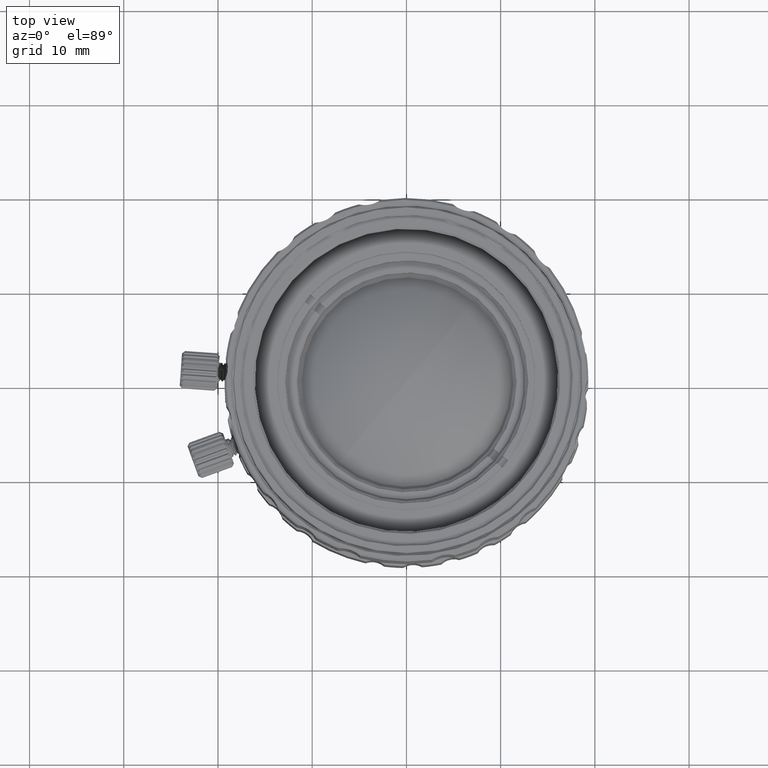
[diagram: clean part render]
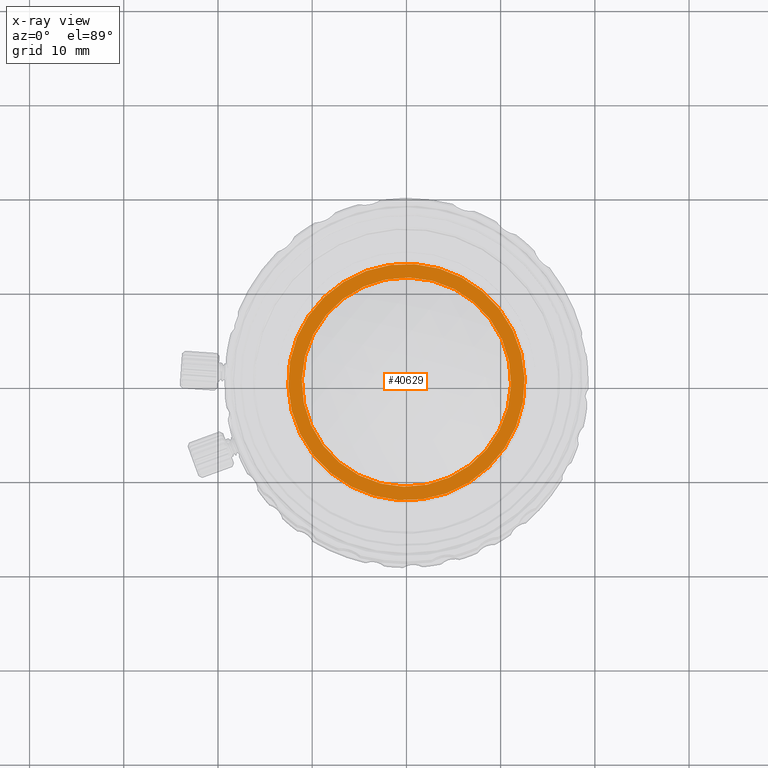
[diagram: x-ray — body ghosted, one internal face saturated and labeled with its STEP entity id]
A machine part, top view, then the same camera in x-ray: the body is ghosted and one INTERNAL B-rep face — a face not visible from any outside direction — is saturated and labeled: STEP entity #40629.
In plain terms, the highlighted planar face has unit normal (0, 0, -1).
Its self-contained STEP definition (entity closure, byte-faithful):
#1437 = VERTEX_POINT ( 'NONE', #47930 ) ;
#1989 = CARTESIAN_POINT ( 'NONE',  ( 7.139441980788022057, 8.508455629722799785, 27.52599999999999980 ) ) ;
#2292 = DIRECTION ( 'NONE',  ( 0.000000000000000000, 0.000000000000000000, -1.000000000000000000 ) ) ;
#4578 = AXIS2_PLACEMENT_3D ( 'NONE', #26975, #15800, #39155 ) ;
#5172 = DIRECTION ( 'NONE',  ( 0.000000000000000000, 0.000000000000000000, 1.000000000000000000 ) ) ;
#5848 = ORIENTED_EDGE ( 'NONE', *, *, #36197, .T. ) ;
#7103 = ORIENTED_EDGE ( 'NONE', *, *, #14534, .F. ) ;
#7549 = DIRECTION ( 'NONE',  ( 0.6427876096865059452, 0.7660444431190059911, 0.000000000000000000 ) ) ;
#7610 = ORIENTED_EDGE ( 'NONE', *, *, #18499, .F. ) ;
#7895 = CIRCLE ( 'NONE', #34618, 11.10699999999999932 ) ;
#8859 = AXIS2_PLACEMENT_3D ( 'NONE', #42296, #49638, #7549 ) ;
#9231 = AXIS2_PLACEMENT_3D ( 'NONE', #37531, #2292, #29681 ) ;
#9834 = VERTEX_POINT ( 'NONE', #34986 ) ;
#13765 = EDGE_LOOP ( 'NONE', ( #5848, #49674 ) ) ;
#14534 = EDGE_CURVE ( 'NONE', #16439, #9834, #30745, .T. ) ;
#15800 = DIRECTION ( 'NONE',  ( 0.000000000000000000, 0.000000000000000000, 1.000000000000000000 ) ) ;
#16366 = CARTESIAN_POINT ( 'NONE',  ( 0.000000000000000000, 0.000000000000000000, 27.52599999999999980 ) ) ;
#16439 = VERTEX_POINT ( 'NONE', #26735 ) ;
#17690 = EDGE_LOOP ( 'NONE', ( #7103, #7610 ) ) ;
#18499 = EDGE_CURVE ( 'NONE', #9834, #16439, #28880, .T. ) ;
#22065 = FACE_BOUND ( 'NONE', #13765, .T. ) ;
#25623 = PLANE ( 'NONE',  #9231 ) ;
#26089 = VERTEX_POINT ( 'NONE', #1989 ) ;
#26735 = CARTESIAN_POINT ( 'NONE',  ( 8.066984501683208464, 9.613857761283624015, 27.52599999999999980 ) ) ;
#26975 = CARTESIAN_POINT ( 'NONE',  ( 0.000000000000000000, 0.000000000000000000, 27.52599999999999980 ) ) ;
#27293 = DIRECTION ( 'NONE',  ( 0.000000000000000000, 0.000000000000000000, 1.000000000000000000 ) ) ;
#28880 = CIRCLE ( 'NONE', #4578, 12.54999999999999893 ) ;
#29681 = DIRECTION ( 'NONE',  ( 0.000000000000000000, -1.000000000000000000, 0.000000000000000000 ) ) ;
#30745 = CIRCLE ( 'NONE', #8859, 12.54999999999999893 ) ;
#31096 = CARTESIAN_POINT ( 'NONE',  ( 0.000000000000000000, 0.000000000000000000, 27.52599999999999980 ) ) ;
#34618 = AXIS2_PLACEMENT_3D ( 'NONE', #16366, #5172, #46537 ) ;
#34986 = CARTESIAN_POINT ( 'NONE',  ( -8.066984501683208464, -9.613857761283622239, 27.52599999999999980 ) ) ;
#36197 = EDGE_CURVE ( 'NONE', #26089, #1437, #41296, .T. ) ;
#37531 = CARTESIAN_POINT ( 'NONE',  ( 0.000000000000000000, 0.000000000000000000, 27.52599999999999980 ) ) ;
#39155 = DIRECTION ( 'NONE',  ( 0.6427876096865059452, 0.7660444431190059911, 0.000000000000000000 ) ) ;
#40629 = ADVANCED_FACE ( 'NONE', ( #22065, #44869 ), #25623, .T. ) ;
#41296 = CIRCLE ( 'NONE', #47766, 11.10699999999999932 ) ;
#42296 = CARTESIAN_POINT ( 'NONE',  ( 0.000000000000000000, 0.000000000000000000, 27.52599999999999980 ) ) ;
#42754 = DIRECTION ( 'NONE',  ( 0.6427876096865060562, 0.7660444431190061021, 0.000000000000000000 ) ) ;
#44770 = EDGE_CURVE ( 'NONE', #1437, #26089, #7895, .T. ) ;
#44869 = FACE_OUTER_BOUND ( 'NONE', #17690, .T. ) ;
#46537 = DIRECTION ( 'NONE',  ( 0.6427876096865060562, 0.7660444431190061021, 0.000000000000000000 ) ) ;
#47766 = AXIS2_PLACEMENT_3D ( 'NONE', #31096, #27293, #42754 ) ;
#47930 = CARTESIAN_POINT ( 'NONE',  ( -7.139441980788009623, -8.508455629722812219, 27.52599999999999980 ) ) ;
#49638 = DIRECTION ( 'NONE',  ( 0.000000000000000000, 0.000000000000000000, 1.000000000000000000 ) ) ;
#49674 = ORIENTED_EDGE ( 'NONE', *, *, #44770, .T. ) ;